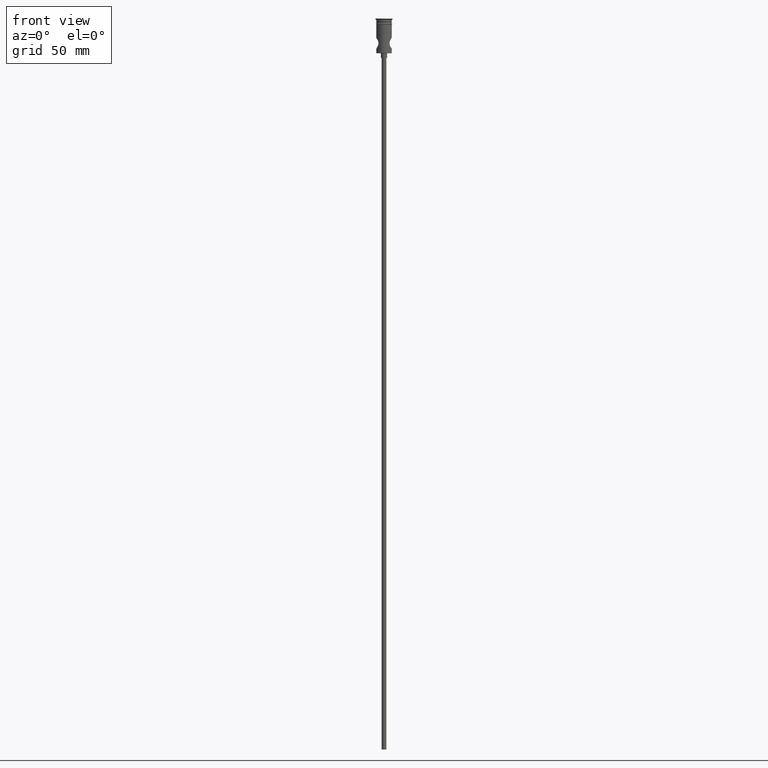
[diagram: clean part render]
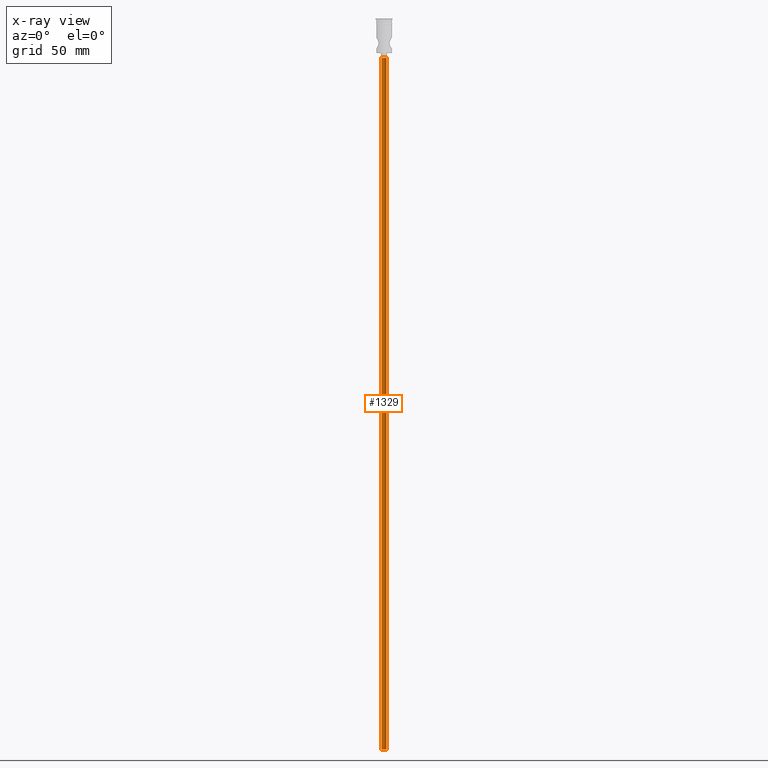
[diagram: x-ray — body ghosted, one internal face saturated and labeled with its STEP entity id]
A machine part, front view, then the same camera in x-ray: the body is ghosted and one INTERNAL B-rep face — a face not visible from any outside direction — is saturated and labeled: STEP entity #1329.
In plain terms, the highlighted cylindrical surface (edge-blend (fillet) strip) has radius 1.5 mm, axis along (-0, -0, 1).
Its self-contained STEP definition (entity closure, byte-faithful):
#6 = ORIENTED_EDGE ( 'NONE', *, *, #474, .F. ) ;
#37 = CARTESIAN_POINT ( 'NONE',  ( 1.500000000000000222, 0.000000000000000000, -25.50000000000000000 ) ) ;
#149 = DIRECTION ( 'NONE',  ( -0.000000000000000000, -0.000000000000000000, 1.000000000000000000 ) ) ;
#175 = EDGE_CURVE ( 'NONE', #1122, #926, #670, .T. ) ;
#199 = DIRECTION ( 'NONE',  ( 1.000000000000000000, 0.000000000000000000, 0.000000000000000000 ) ) ;
#215 = DIRECTION ( 'NONE',  ( 0.000000000000000000, 0.000000000000000000, -1.000000000000000000 ) ) ;
#257 = EDGE_LOOP ( 'NONE', ( #6, #554, #1185, #949 ) ) ;
#353 = VERTEX_POINT ( 'NONE', #373 ) ;
#359 = VECTOR ( 'NONE', #1246, 1000.000000000000000 ) ;
#373 = CARTESIAN_POINT ( 'NONE',  ( 1.500000000000000222, 0.000000000000000000, -472.5000000000000568 ) ) ;
#381 = AXIS2_PLACEMENT_3D ( 'NONE', #1343, #986, #1088 ) ;
#432 = AXIS2_PLACEMENT_3D ( 'NONE', #1266, #1274, #199 ) ;
#438 = VERTEX_POINT ( 'NONE', #752 ) ;
#474 = EDGE_CURVE ( 'NONE', #438, #353, #758, .T. ) ;
#554 = ORIENTED_EDGE ( 'NONE', *, *, #970, .T. ) ;
#582 = CARTESIAN_POINT ( 'NONE',  ( 0.000000000000000000, 0.000000000000000000, -472.5000000000000568 ) ) ;
#670 = CIRCLE ( 'NONE', #381, 1.500000000000000222 ) ;
#712 = LINE ( 'NONE', #791, #359 ) ;
#752 = CARTESIAN_POINT ( 'NONE',  ( -1.500000000000000222, 1.836970198721030181E-16, -472.5000000000000568 ) ) ;
#758 = CIRCLE ( 'NONE', #945, 1.500000000000000222 ) ;
#791 = CARTESIAN_POINT ( 'NONE',  ( 1.500000000000000222, 0.000000000000000000, -472.5000000000000568 ) ) ;
#806 = CYLINDRICAL_SURFACE ( 'NONE', #432, 1.500000000000000222 ) ;
#914 = FACE_OUTER_BOUND ( 'NONE', #257, .T. ) ;
#926 = VERTEX_POINT ( 'NONE', #37 ) ;
#945 = AXIS2_PLACEMENT_3D ( 'NONE', #582, #215, #1025 ) ;
#949 = ORIENTED_EDGE ( 'NONE', *, *, #1077, .F. ) ;
#970 = EDGE_CURVE ( 'NONE', #438, #1122, #1157, .T. ) ;
#986 = DIRECTION ( 'NONE',  ( 0.000000000000000000, 0.000000000000000000, -1.000000000000000000 ) ) ;
#1025 = DIRECTION ( 'NONE',  ( -1.000000000000000000, 0.000000000000000000, 0.000000000000000000 ) ) ;
#1077 = EDGE_CURVE ( 'NONE', #353, #926, #712, .T. ) ;
#1088 = DIRECTION ( 'NONE',  ( -1.000000000000000000, 0.000000000000000000, 0.000000000000000000 ) ) ;
#1122 = VERTEX_POINT ( 'NONE', #1159 ) ;
#1157 = LINE ( 'NONE', #1387, #1377 ) ;
#1159 = CARTESIAN_POINT ( 'NONE',  ( -1.500000000000000222, 1.836970198721030181E-16, -25.50000000000000000 ) ) ;
#1185 = ORIENTED_EDGE ( 'NONE', *, *, #175, .T. ) ;
#1246 = DIRECTION ( 'NONE',  ( -0.000000000000000000, -0.000000000000000000, 1.000000000000000000 ) ) ;
#1266 = CARTESIAN_POINT ( 'NONE',  ( 0.000000000000000000, 0.000000000000000000, -472.5000000000000568 ) ) ;
#1274 = DIRECTION ( 'NONE',  ( -0.000000000000000000, -0.000000000000000000, 1.000000000000000000 ) ) ;
#1329 = ADVANCED_FACE ( 'NONE', ( #914 ), #806, .T. ) ;
#1343 = CARTESIAN_POINT ( 'NONE',  ( 0.000000000000000000, 0.000000000000000000, -25.50000000000000000 ) ) ;
#1377 = VECTOR ( 'NONE', #149, 1000.000000000000000 ) ;
#1387 = CARTESIAN_POINT ( 'NONE',  ( -1.500000000000000222, 1.836970198721030181E-16, -472.5000000000000568 ) ) ;